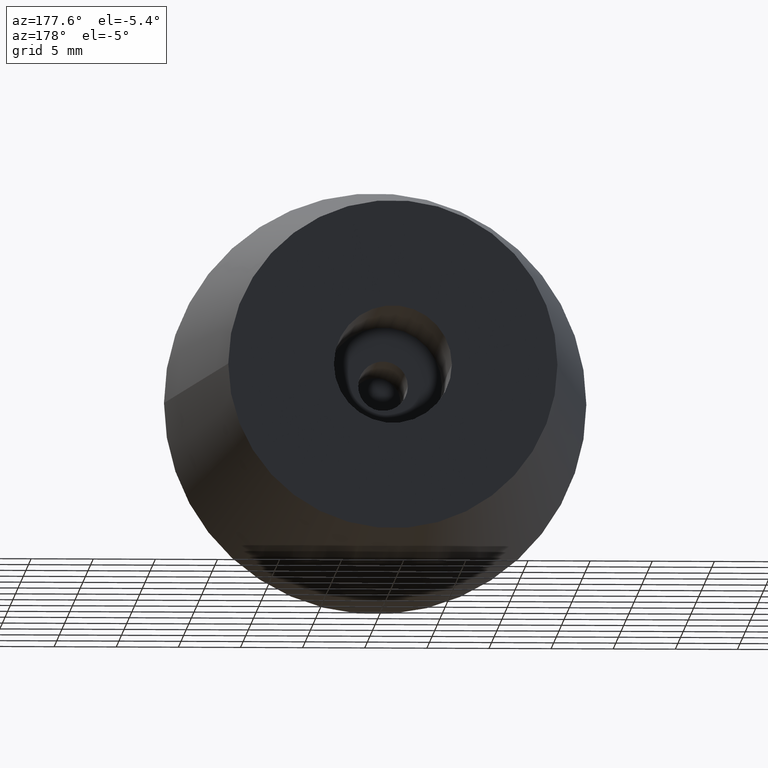
[diagram: clean part render]
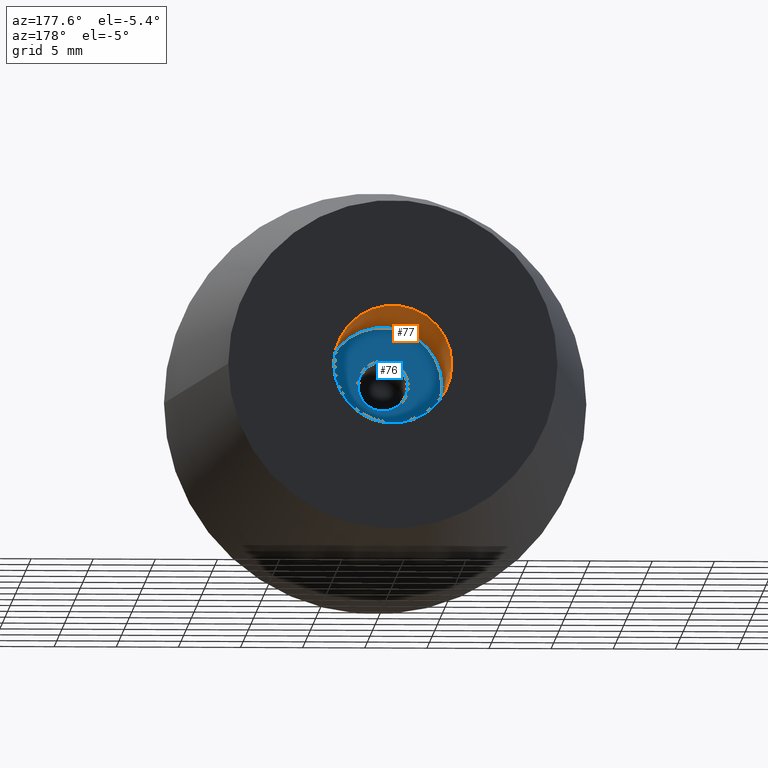
[diagram: same view with the hole feature highlighted: cylindrical wall and planar end face, labeled with their STEP entity ids]
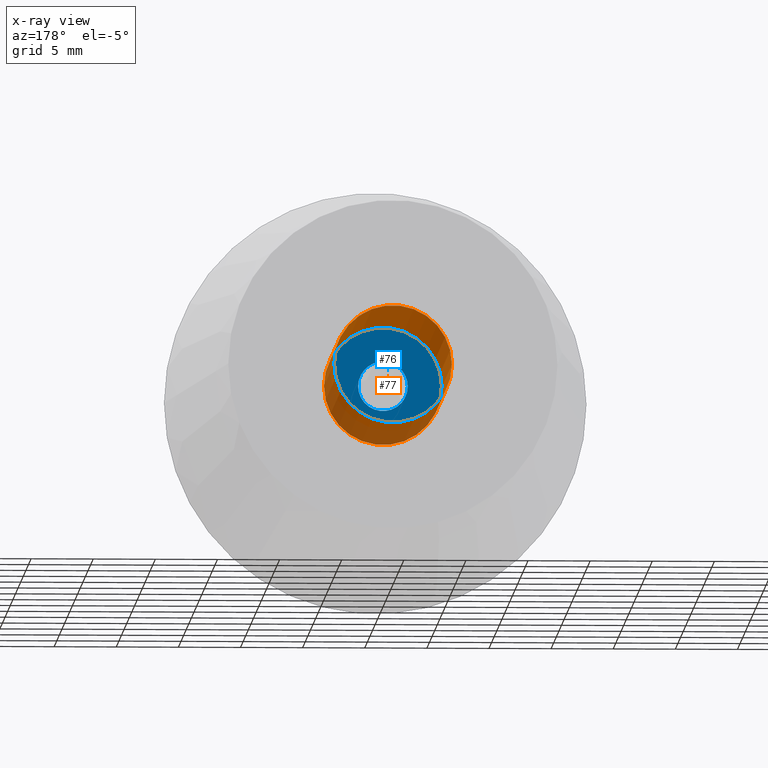
[diagram: x-ray of the same camera — body ghosted, the hole faces saturated]
A machine part, auxiliary view. The highlighted faces form one hole feature of diameter 9.5 mm: the cylindrical wall (entity #77, orange) and its adjacent planar end face (entity #76, blue) — they share a circular edge in the B-rep.
The next image is the same camera in x-ray (body ghosted, the hole faces saturated) — the bore reads through the body.
Wall:
#16=CYLINDRICAL_SURFACE('',#88,4.75);
#19=FACE_BOUND('',#33,.T.);
#24=FACE_OUTER_BOUND('',#32,.T.);
#32=EDGE_LOOP('',(#62));
#33=EDGE_LOOP('',(#63));
#42=CIRCLE('',#86,4.75);
#44=CIRCLE('',#89,4.75);
#48=VERTEX_POINT('',#128);
#50=VERTEX_POINT('',#133);
#54=EDGE_CURVE('',#48,#48,#42,.T.);
#56=EDGE_CURVE('',#50,#50,#44,.T.);
#62=ORIENTED_EDGE('',*,*,#56,.F.);
#63=ORIENTED_EDGE('',*,*,#54,.F.);
#77=ADVANCED_FACE('',(#24,#19),#16,.F.);
#86=AXIS2_PLACEMENT_3D('',#129,#102,#103);
#88=AXIS2_PLACEMENT_3D('',#132,#106,#107);
#89=AXIS2_PLACEMENT_3D('',#134,#108,#109);
#102=DIRECTION('center_axis',(0.,1.,0.));
#103=DIRECTION('ref_axis',(-1.,0.,0.));
#106=DIRECTION('center_axis',(0.,1.,0.));
#107=DIRECTION('ref_axis',(-1.,0.,0.));
#108=DIRECTION('center_axis',(0.,-1.,0.));
#109=DIRECTION('ref_axis',(-1.,0.,0.));
#128=CARTESIAN_POINT('',(-4.75,15.,0.));
#129=CARTESIAN_POINT('Origin',(0.,15.,0.));
#132=CARTESIAN_POINT('Origin',(0.,24.5,0.));
#133=CARTESIAN_POINT('',(-4.75,34.,0.));
#134=CARTESIAN_POINT('Origin',(0.,34.,0.));
End face:
#18=FACE_BOUND('',#31,.T.);
#23=FACE_OUTER_BOUND('',#30,.T.);
#30=EDGE_LOOP('',(#60));
#31=EDGE_LOOP('',(#61));
#42=CIRCLE('',#86,4.75);
#43=CIRCLE('',#87,2.);
#48=VERTEX_POINT('',#128);
#49=VERTEX_POINT('',#130);
#54=EDGE_CURVE('',#48,#48,#42,.T.);
#55=EDGE_CURVE('',#49,#49,#43,.T.);
#60=ORIENTED_EDGE('',*,*,#54,.T.);
#61=ORIENTED_EDGE('',*,*,#55,.F.);
#72=PLANE('',#85);
#76=ADVANCED_FACE('',(#23,#18),#72,.T.);
#85=AXIS2_PLACEMENT_3D('',#127,#100,#101);
#86=AXIS2_PLACEMENT_3D('',#129,#102,#103);
#87=AXIS2_PLACEMENT_3D('',#131,#104,#105);
#100=DIRECTION('center_axis',(0.,1.,0.));
#101=DIRECTION('ref_axis',(-1.,0.,0.));
#102=DIRECTION('center_axis',(0.,1.,0.));
#103=DIRECTION('ref_axis',(-1.,0.,0.));
#104=DIRECTION('center_axis',(0.,1.,0.));
#105=DIRECTION('ref_axis',(-1.,0.,0.));
#127=CARTESIAN_POINT('Origin',(0.,15.,0.));
#128=CARTESIAN_POINT('',(-4.75,15.,0.));
#129=CARTESIAN_POINT('Origin',(0.,15.,0.));
#130=CARTESIAN_POINT('',(2.,15.,-2.44929359829471E-16));
#131=CARTESIAN_POINT('Origin',(0.,15.,0.));